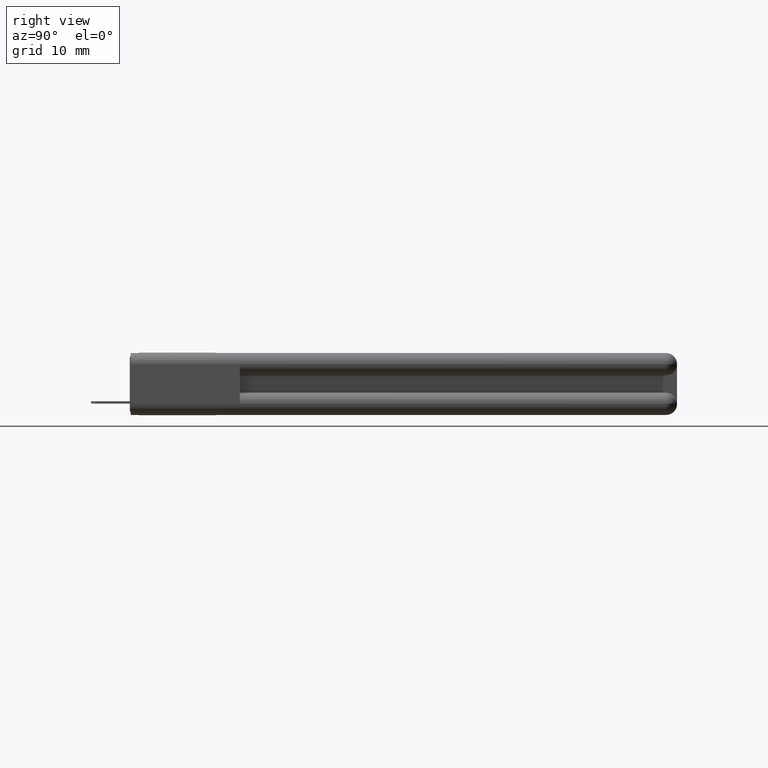
[diagram: clean part render]
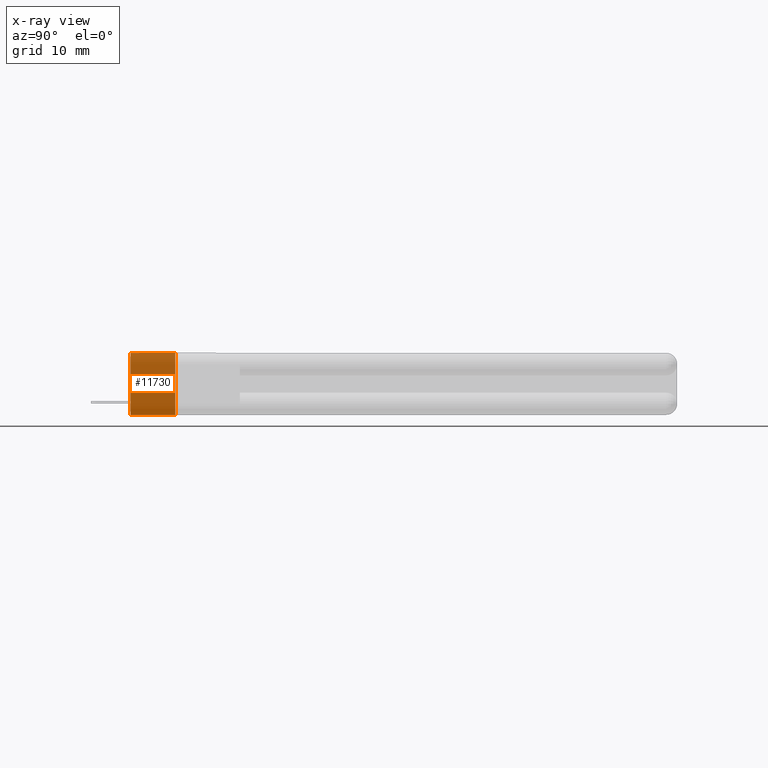
[diagram: x-ray — body ghosted, one internal face saturated and labeled with its STEP entity id]
A machine part, right view, then the same camera in x-ray: the body is ghosted and one INTERNAL B-rep face — a face not visible from any outside direction — is saturated and labeled: STEP entity #11730.
In plain terms, the highlighted planar face has unit normal (1, -0, 0).
Its self-contained STEP definition (entity closure, byte-faithful):
#489 = CARTESIAN_POINT ( 'NONE',  ( 0.2650000000000063400, 0.2450000000000000500, -0.3400000000000031900 ) ) ;
#838 = CARTESIAN_POINT ( 'NONE',  ( 0.2650000000000063400, 0.2450000000000000500, -0.3400000000000031900 ) ) ;
#1092 = VECTOR ( 'NONE', #10725, 39.37007874015748100 ) ;
#1681 = VERTEX_POINT ( 'NONE', #9521 ) ;
#1803 = CARTESIAN_POINT ( 'NONE',  ( 0.2650000000000063400, 0.2450000000000000500, -0.3400000000000031900 ) ) ;
#2492 = ORIENTED_EDGE ( 'NONE', *, *, #12409, .F. ) ;
#2889 = DIRECTION ( 'NONE',  ( 4.510281037539688600E-017, -2.334284690065025700E-016, 1.000000000000000000 ) ) ;
#2974 = CARTESIAN_POINT ( 'NONE',  ( 0.2650000000000033400, 2.785204399790518600E-016, -0.3400000000000031900 ) ) ;
#3534 = EDGE_CURVE ( 'NONE', #6707, #4492, #11275, .T. ) ;
#3695 = DIRECTION ( 'NONE',  ( 5.726536043434383500E-016, 1.000000000000000000, -2.334284690065039000E-016 ) ) ;
#3926 = FACE_OUTER_BOUND ( 'NONE', #7485, .T. ) ;
#4145 = CARTESIAN_POINT ( 'NONE',  ( 0.2650000000000033400, 0.2450000000000000500, -8.878505979408856000E-016 ) ) ;
#4492 = VERTEX_POINT ( 'NONE', #4145 ) ;
#4557 = LINE ( 'NONE', #2974, #8506 ) ;
#5753 = DIRECTION ( 'NONE',  ( 1.000000000000000000, -5.726536043434383500E-016, 4.510281037539698400E-017 ) ) ;
#6173 = ORIENTED_EDGE ( 'NONE', *, *, #10665, .F. ) ;
#6296 = AXIS2_PLACEMENT_3D ( 'NONE', #9734, #5753, #3695 ) ;
#6542 = DIRECTION ( 'NONE',  ( 4.510281037539688600E-017, -2.334284690065025700E-016, 1.000000000000000000 ) ) ;
#6707 = VERTEX_POINT ( 'NONE', #1803 ) ;
#7485 = EDGE_LOOP ( 'NONE', ( #2492, #6173, #11200, #10553 ) ) ;
#8506 = VECTOR ( 'NONE', #2889, 39.37007874015748100 ) ;
#8634 = VECTOR ( 'NONE', #6542, 39.37007874015748100 ) ;
#8803 = DIRECTION ( 'NONE',  ( 5.726536043434383500E-016, 1.000000000000000000, -2.334284690065039000E-016 ) ) ;
#9044 = VERTEX_POINT ( 'NONE', #11864 ) ;
#9521 = CARTESIAN_POINT ( 'NONE',  ( 0.2650000000000033400, 1.952844464220938100E-016, -8.878505979408856000E-016 ) ) ;
#9734 = CARTESIAN_POINT ( 'NONE',  ( 0.2650000000000063400, 0.2450000000000000500, -0.3400000000000031900 ) ) ;
#9915 = EDGE_CURVE ( 'NONE', #9044, #6707, #9936, .T. ) ;
#9936 = LINE ( 'NONE', #838, #11327 ) ;
#10553 = ORIENTED_EDGE ( 'NONE', *, *, #3534, .T. ) ;
#10665 = EDGE_CURVE ( 'NONE', #9044, #1681, #4557, .T. ) ;
#10725 = DIRECTION ( 'NONE',  ( 5.726536043434383500E-016, 1.000000000000000000, -2.334284690065039000E-016 ) ) ;
#10882 = PLANE ( 'NONE',  #6296 ) ;
#11200 = ORIENTED_EDGE ( 'NONE', *, *, #9915, .T. ) ;
#11275 = LINE ( 'NONE', #489, #8634 ) ;
#11327 = VECTOR ( 'NONE', #8803, 39.37007874015748100 ) ;
#11681 = CARTESIAN_POINT ( 'NONE',  ( 0.2650000000000033400, 0.2450000000000000500, -8.878505979408856000E-016 ) ) ;
#11730 = ADVANCED_FACE ( 'NONE', ( #3926 ), #10882, .T. ) ;
#11864 = CARTESIAN_POINT ( 'NONE',  ( 0.2650000000000033400, 2.785204399790518600E-016, -0.3400000000000031900 ) ) ;
#12409 = EDGE_CURVE ( 'NONE', #1681, #4492, #12578, .T. ) ;
#12578 = LINE ( 'NONE', #11681, #1092 ) ;